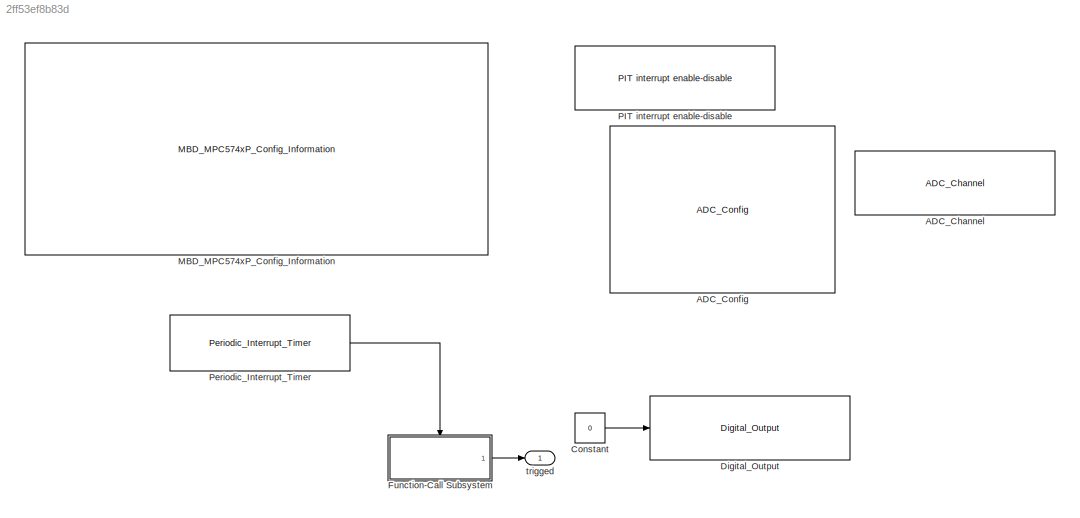
MODEL slx_2ff53ef8b83d
KIND model
CONFIG AbsTol = auto
CONFIG EnableMultiTasking = off
CONFIG FixedStep = 1e-5
CONFIG InitFcn = mbd_pnt_consistency_checks(bdroot(gcs));
CONFIG MaxStep = auto
CONFIG MinStep = auto
CONFIG RelTol = 1e-3
CONFIG SampleTimeConstraint = Unconstrained
CONFIG Solver = FixedStepDiscrete
CONFIG SolverName = FixedStepDiscrete
CONFIG StartTime = 0.0
CONFIG StopTime = 5
BLOCK [Reference] ADC_Channel  REF=mbd_pnt_ec_toolbox/MPC574xP/Motor Control Blocks/ADC_Channel
  Commented = on
  Ports = [0, 1]
  SourceBlock = mbd_pnt_ec_toolbox/MPC574xP/Motor Control Blocks/ADC_Channel
  SourceProductName = Model Based Design Toolbox for MPC574xP
  SourceType = adc_pnt_channel_block
BLOCK [Reference] ADC_Config  REF=mbd_pnt_ec_toolbox/MPC574xP/Motor Control Blocks/ADC_Config
  Commented = on
  Ports = []
  SourceBlock = mbd_pnt_ec_toolbox/MPC574xP/Motor Control Blocks/ADC_Config
  SourceProductName = Model Based Design Toolbox for MPC574xP
  SourceType = adc_pnt_config_block
BLOCK [Constant] Constant
  OutDataTypeStr = boolean
  Value = 0
BLOCK [Reference] Digital_Output  REF=mbd_pnt_ec_toolbox/MPC574xP/Peripheral Interface Blocks/Digital_Output
  Ports = [1]
  SourceBlock = mbd_pnt_ec_toolbox/MPC574xP/Peripheral Interface Blocks/Digital_Output
  SourceProductName = Model Based Design Toolbox for MPC574xP
  SourceType = GPIO_PNT_Output
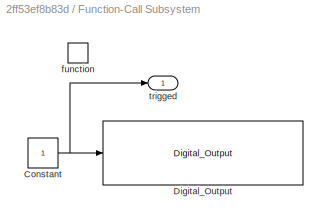
BLOCK [SubSystem] Function-Call Subsystem
  Ports = [0, 1, 0, 1]
  RequestExecContextInheritance = off
  TreatAsAtomicUnit = on
BLOCK [Constant] Function-Call Subsystem/Constant
  OutDataTypeStr = boolean
BLOCK [Reference] Function-Call Subsystem/Digital_Output  REF=mbd_pnt_ec_toolbox/MPC574xP/Peripheral Interface Blocks/Digital_Output
  Ports = [1]
  SourceBlock = mbd_pnt_ec_toolbox/MPC574xP/Peripheral Interface Blocks/Digital_Output
  SourceProductName = Model Based Design Toolbox for MPC574xP
  SourceType = GPIO_PNT_Output
BLOCK [TriggerPort] Function-Call Subsystem/function
  Ports = []
  StatesWhenEnabling = held
  TriggerType = function-call
  VariantControl = Variant
BLOCK [Outport] Function-Call Subsystem/trigged
  IconDisplay = Port number
BLOCK [Reference] MBD_MPC574xP_Config_Information  REF=mbd_pnt_ec_toolbox/MPC574xP/MBD_MPC574xP_Config_Information
  Ports = []
  SourceBlock = mbd_pnt_ec_toolbox/MPC574xP/MBD_MPC574xP_Config_Information
  SourceProductName = Model Based Design Toolbox for MPC574xP
  SourceType = MBDTBX_EC_PNT
BLOCK [Reference] PIT interrupt enable-disable  REF=mbd_pnt_ec_toolbox/MPC574xP/Utility Blocks/PIT interrupt enable-disable
  Ports = []
  SourceBlock = mbd_pnt_ec_toolbox/MPC574xP/Utility Blocks/PIT interrupt enable-disable
  SourceProductName = Model Based Design Toolbox for MPC574xP
  SourceType = PIT_pnt_isr_enable
BLOCK [Reference] Periodic_Interrupt_Timer  REF=mbd_pnt_ec_toolbox/MPC574xP/Utility Blocks/Periodic_Interrupt_Timer
  Ports = [0, 1]
  SourceBlock = mbd_pnt_ec_toolbox/MPC574xP/Utility Blocks/Periodic_Interrupt_Timer
  SourceProductName = Model Based Design Toolbox for MPC574xP
  SourceType = timer_pnt_pit_block
BLOCK [Outport] trigged
  IconDisplay = Port number
LINE Constant:1 -> Digital_Output:1
NET Function-Call Subsystem/Constant:1 -> Function-Call Subsystem/Digital_Output:1, Function-Call Subsystem/trigged:1
LINE Function-Call Subsystem:1 -> trigged:1
LINE Periodic_Interrupt_Timer:1 -> Function-Call Subsystem:trigger
note: NET lines group one-source signal fan-out (src -> all destinations, sorted); 1:1 wires keep LINE
